MODEL slx_71d3f31e9f96
KIND model
CONFIG AbsTol = auto
CONFIG EnableMultiTasking = on
CONFIG FixedStep = auto
CONFIG InitFcn = sm_callback_init
CONFIG MaxStep = auto
CONFIG MinStep = auto
CONFIG RelTol = 1e-3
CONFIG SampleTimeConstraint = Unconstrained
CONFIG Solver = FixedStepAuto
CONFIG SolverName = FixedStepAuto
CONFIG StartTime = 0.0
CONFIG StopTime = stop_time
BLOCK [SubSystem] Capture Avalon Signals
  Ports = [4]
  RequestExecContextInheritance = off
BLOCK [ToWorkspace] Capture Avalon Signals/To Workspace
  FixptAsFi = on
  MaxDataPoints = inf
  Ports = [1]
  SampleTime = -1
  SaveFormat = Timeseries
  VariableName = Avalon_Sink_Data
BLOCK [ToWorkspace] Capture Avalon Signals/To Workspace1
  FixptAsFi = on
  MaxDataPoints = inf
  Ports = [1]
  SampleTime = -1
  SaveFormat = Timeseries
  VariableName = Avalon_Sink_Valid
BLOCK [ToWorkspace] Capture Avalon Signals/To Workspace2
  FixptAsFi = on
  MaxDataPoints = inf
  Ports = [1]
  SampleTime = -1
  SaveFormat = Timeseries
  VariableName = Avalon_Sink_Channel
BLOCK [ToWorkspace] Capture Avalon Signals/To Workspace3
  FixptAsFi = on
  MaxDataPoints = inf
  Ports = [1]
  SampleTime = -1
  SaveFormat = Timeseries
  VariableName = Avalon_Sink_Error
BLOCK [Inport] Capture Avalon Signals/channel
  IconDisplay = Port number
  Port = 3
BLOCK [Inport] Capture Avalon Signals/data
  IconDisplay = Port number
  Port = 2
BLOCK [Inport] Capture Avalon Signals/error
  IconDisplay = Port number
  Port = 4
BLOCK [Inport] Capture Avalon Signals/valid
  IconDisplay = Port number
BLOCK [Reference] DocBlock  REF=simulink/Model-Wide
Utilities/DocBlock
  Ports = []
  SourceBlock = simulink/Model-Wide\nUtilities/DocBlock
  SourceProductBaseCode = SL
  SourceProductName = Simulink
  SourceType = DocBlock
  UserDataPersistent = on
BLOCK [SubSystem] Generate Avalon Signals
  Ports = [0, 4]
  RequestExecContextInheritance = off
BLOCK [FromWorkspace] Generate Avalon Signals/Avalon Source Channel
  OutDataTypeStr = double
  SampleTime = mp.Ts_system
  VariableName = mp.Avalon_Source_Channel
  ZeroCross = on
BLOCK [FromWorkspace] Generate Avalon Signals/Avalon Source Data 
  OutDataTypeStr = double
  SampleTime = mp.Ts_system
  VariableName = mp.Avalon_Source_Data
  ZeroCross = on
BLOCK [FromWorkspace] Generate Avalon Signals/Avalon Source Error
  OutDataTypeStr = double
  SampleTime = mp.Ts_system
  VariableName = mp.Avalon_Source_Error
  ZeroCross = on
BLOCK [FromWorkspace] Generate Avalon Signals/Avalon Source Valid
  OutDataTypeStr = double
  SampleTime = mp.Ts_system
  VariableName = mp.Avalon_Source_Valid
  ZeroCross = on
BLOCK [DataTypeConversion] Generate Avalon Signals/Data Type Conversion
  OutDataTypeStr = fixdt(1,mp.W_bits,mp.F_bits)
  RndMeth = Floor
  SaturateOnIntegerOverflow = off
BLOCK [DataTypeConversion] Generate Avalon Signals/Data Type Conversion1
  OutDataTypeStr = fixdt(0,2,0)
  RndMeth = Floor
  SaturateOnIntegerOverflow = off
BLOCK [DataTypeConversion] Generate Avalon Signals/Data Type Conversion2
  OutDataTypeStr = boolean
  RndMeth = Floor
  SaturateOnIntegerOverflow = off
BLOCK [DataTypeConversion] Generate Avalon Signals/Data Type Conversion3
  OutDataTypeStr = fixdt(0,2,0)
  RndMeth = Floor
  SaturateOnIntegerOverflow = off
BLOCK [Outport] Generate Avalon Signals/channel
  IconDisplay = Port number
  Port = 3
  VectorParamsAs1DForOutWhenUnconnected = off
BLOCK [Outport] Generate Avalon Signals/data
  IconDisplay = Port number
  Port = 2
  VectorParamsAs1DForOutWhenUnconnected = off
BLOCK [Outport] Generate Avalon Signals/error
  IconDisplay = Port number
  Port = 4
  VectorParamsAs1DForOutWhenUnconnected = off
BLOCK [Outport] Generate Avalon Signals/valid
  IconDisplay = Port number
  VectorParamsAs1DForOutWhenUnconnected = off
BLOCK [SubSystem] Register Control Signals
  Ports = [0, 2]
  RequestExecContextInheritance = off
BLOCK [DataTypeConversion] Register Control Signals/Data Type Conversion1
  OutDataTypeStr = fixdt(1,mp.W_bits,mp.F_bits)
  RndMeth = Floor
  SaturateOnIntegerOverflow = off
BLOCK [DataTypeConversion] Register Control Signals/Data Type Conversion2
  OutDataTypeStr = fixdt(1,mp.W_bits,mp.F_bits)
  RndMeth = Floor
  SaturateOnIntegerOverflow = off
BLOCK [FromWorkspace] Register Control Signals/Time Series Signal from Workspace 1
  OutDataTypeStr = double
  SampleTime = mp.Ts_system
  VariableName = mp.register(1).timeseries
  ZeroCross = on
BLOCK [FromWorkspace] Register Control Signals/Time Series Signal from Workspace 2
  OutDataTypeStr = double
  SampleTime = mp.Ts_system
  VariableName = mp.register(2).timeseries
  ZeroCross = on
BLOCK [Outport] Register Control Signals/register_control_addr
  IconDisplay = Port number
  Port = 2
  VectorParamsAs1DForOutWhenUnconnected = off
BLOCK [Outport] Register Control Signals/register_control_data
  IconDisplay = Port number
  VectorParamsAs1DForOutWhenUnconnected = off
BLOCK [SubSystem] dataplane
  Ports = [6, 4]
  RequestExecContextInheritance = off
  TreatAsAtomicUnit = on
BLOCK [SubSystem] dataplane/Avalon Data Processing
  Ports = [5, 2]
  RequestExecContextInheritance = off
  TreatAsAtomicUnit = on
BLOCK [Reference] dataplane/Avalon Data Processing/Compare To Constant1  REF=simulink/Logic and Bit
Operations/Compare
To Constant
  Ports = [1, 1]
  SourceBlock = simulink/Logic and Bit\nOperations/Compare\nTo Constant
  SourceProductBaseCode = SL
  SourceProductName = Simulink
  SourceType = Compare To Constant
BLOCK [Reference] dataplane/Avalon Data Processing/Compare To Constant2  REF=simulink/Logic and Bit
Operations/Compare
To Constant
  Ports = [1, 1]
  SourceBlock = simulink/Logic and Bit\nOperations/Compare\nTo Constant
  SourceProductBaseCode = SL
  SourceProductName = Simulink
  SourceType = Compare To Constant
BLOCK [SubSystem] dataplane/Avalon Data Processing/Left Channel Processing
  Ports = [4, 1]
  RequestExecContextInheritance = off
  TreatAsAtomicUnit = on
BLOCK [DataTypeConversion] dataplane/Avalon Data Processing/Left Channel Processing/Cast To Boolean
  Commented = on
  OutDataTypeStr = boolean
  RndMeth = Floor
  SaturateOnIntegerOverflow = off
BLOCK [DataTypeConversion] dataplane/Avalon Data Processing/Left Channel Processing/Cast To Boolean1
  Commented = on
  OutDataTypeStr = boolean
  RndMeth = Floor
  SaturateOnIntegerOverflow = off
BLOCK [DataTypeConversion] dataplane/Avalon Data Processing/Left Channel Processing/Cast To fp(1,32,28)
  Commented = on
  OutDataTypeStr = fixdt(1,32,28)
  RndMeth = Round
  SaturateOnIntegerOverflow = off
BLOCK [DataTypeConversion] dataplane/Avalon Data Processing/Left Channel Processing/Cast To fp(1,32,28)1
  Commented = on
  OutDataTypeStr = fixdt(1,32,28)
  RndMeth = Round
  SaturateOnIntegerOverflow = off
BLOCK [DiscreteFir] dataplane/Avalon Data Processing/Left Channel Processing/Discrete FIR Filter 1
  AccumDataTypeStr = fixdt(1, W_bits, F_bits)
  CoefDataTypeStr = fixdt(1, W_bits, F_bits)
  Coefficients = calib_bpfs(2:calib_bpfs(1,1)+1 ,1)'
  Commented = on
  InputPortMap = u0
  OutDataTypeStr = fixdt(1, W_bits, F_bits)
  OutputPortMap = o0
  Ports = [1, 1]
  ProductDataTypeStr = fixdt(1, W_bits, F_bits)
BLOCK [Reference] dataplane/Avalon Data Processing/Left Channel Processing/Discrete FIR Filter HDL Optimized  REF=dsphdlfiltering/Discrete FIR Filter
HDL Optimized
  Commented = on
  Ports = [2, 2]
  SourceBlock = dsphdlfiltering/Discrete FIR Filter\nHDL Optimized
  SourceProductBaseCode = DS
  SourceProductName = DSP System Toolbox
  SourceType = Discrete FIR Filter HDL Optimized
BLOCK [FromWorkspace] dataplane/Avalon Data Processing/Left Channel Processing/From Workspace
  Commented = on
  OutputAfterFinalValue = Setting to zero
  SampleTime = Ts
  VariableName = sig_in
  ZeroCross = on
BLOCK [FromWorkspace] dataplane/Avalon Data Processing/Left Channel Processing/From Workspace1
  Commented = on
  Interpolate = off
  OutputAfterFinalValue = Setting to zero
  SampleTime = Ts
  VariableName = Table_Fill_t
  ZeroCross = on
BLOCK [FromWorkspace] dataplane/Avalon Data Processing/Left Channel Processing/From Workspace2
  Commented = on
  OutputAfterFinalValue = Setting to zero
  SampleTime = Ts
  VariableName = Fill_Valid_t
  ZeroCross = on
BLOCK [FromWorkspace] dataplane/Avalon Data Processing/Left Channel Processing/From Workspace4
  Commented = on
  Interpolate = off
  OutputAfterFinalValue = Setting to zero
  SampleTime = Ts
  VariableName = Reset
  ZeroCross = on
BLOCK [Inport] dataplane/Avalon Data Processing/Left Channel Processing/Left_Data_In
  IconDisplay = Port number
BLOCK [Outport] dataplane/Avalon Data Processing/Left Channel Processing/Left_Data_Out 
  IconDisplay = Port number
  InitialOutput = 0
  VectorParamsAs1DForOutWhenUnconnected = off
BLOCK [Inport] dataplane/Avalon Data Processing/Left Channel Processing/Register_Addr
  IconDisplay = Port number
  Port = 3
BLOCK [Inport] dataplane/Avalon Data Processing/Left Channel Processing/Register_Data
  IconDisplay = Port number
  Port = 2
BLOCK [SubSystem] dataplane/Avalon Data Processing/Left Channel Processing/Static_pFIR
  Ports = [2, 1]
  RequestExecContextInheritance = off
BLOCK [SubSystem] dataplane/Avalon Data Processing/Left Channel Processing/Static_pFIR/Addr_Gen 
  Ports = [0, 4]
  RequestExecContextInheritance = off
BLOCK [Sum] dataplane/Avalon Data Processing/Left Channel Processing/Static_pFIR/Addr_Gen /Add
  AccumDataTypeStr = Inherit: Same as first input
  InputSameDT = off
  Ports = [2, 1]
  SaturateOnIntegerOverflow = off
BLOCK [Reference] dataplane/Avalon Data Processing/Left Channel Processing/Static_pFIR/Addr_Gen /Compare To Zero  REF=simulink/Logic and Bit
Operations/Compare
To Zero
  Ports = [1, 1]
  SourceBlock = simulink/Logic and Bit\nOperations/Compare\nTo Zero
  SourceProductBaseCode = SL
  SourceProductName = Simulink
  SourceType = Compare To Zero
BLOCK [Constant] dataplane/Avalon Data Processing/Left Channel Processing/Static_pFIR/Addr_Gen /Constant
  OutDataTypeStr = fixdt(0, FIR_0_Size,0)
  SampleTime = -1
BLOCK [Reference] dataplane/Avalon Data Processing/Left Channel Processing/Static_pFIR/Addr_Gen /Counter 0 to |b_k|-1  REF=simulink/Sources/Counter
Free-Running
  Ports = [0, 1]
  SourceBlock = simulink/Sources/Counter\nFree-Running
  SourceProductBaseCode = SL
  SourceProductName = Simulink
  SourceType = Counter Free-Running
BLOCK [Outport] dataplane/Avalon Data Processing/Left Channel Processing/Static_pFIR/Addr_Gen /Data_History_Rd_addr
  IconDisplay = Port number
  Port = 2
  VectorParamsAs1DForOutWhenUnconnected = off
BLOCK [Outport] dataplane/Avalon Data Processing/Left Channel Processing/Static_pFIR/Addr_Gen /End_of_sample_calc
  IconDisplay = Port number
  Port = 3
  VectorParamsAs1DForOutWhenUnconnected = off
BLOCK [Outport] dataplane/Avalon Data Processing/Left Channel Processing/Static_pFIR/Addr_Gen /Input_Addr
  IconDisplay = Port number
  VectorParamsAs1DForOutWhenUnconnected = off
BLOCK [Reference] dataplane/Avalon Data Processing/Left Channel Processing/Static_pFIR/Addr_Gen /Input_Addr_Counter  REF=simulink/Sources/Counter
Free-Running
  Ports = [0, 1]
  SourceBlock = simulink/Sources/Counter\nFree-Running
  SourceProductBaseCode = SL
  SourceProductName = Simulink
  SourceType = Counter Free-Running
BLOCK [RateTransition] dataplane/Avalon Data Processing/Left Channel Processing/Static_pFIR/Addr_Gen /Rate Transition
  OutPortSampleTime = Ts/FIR_0_Uprate
BLOCK [Constant] dataplane/Avalon Data Processing/Left Channel Processing/Static_pFIR/Addr_Gen /Realignment_delay
  OutDataTypeStr = fixdt(0, FIR_0_Size,0)
  SampleTime = -1
  Value = 0
BLOCK [Sum] dataplane/Avalon Data Processing/Left Channel Processing/Static_pFIR/Addr_Gen /Subtract
  AccumDataTypeStr = Inherit: Same as first input
  InputSameDT = off
  Inputs = +--
  Ports = [3, 1]
  SaturateOnIntegerOverflow = off
BLOCK [Outport] dataplane/Avalon Data Processing/Left Channel Processing/Static_pFIR/Addr_Gen /b_k_addr
  IconDisplay = Port number
  Port = 4
  VectorParamsAs1DForOutWhenUnconnected = off
BLOCK [UnitDelay] dataplane/Avalon Data Processing/Left Channel Processing/Static_pFIR/Alignment_Delay
  HasFrameUpgradeWarning = on
  SampleTime = -1
BLOCK [Constant] dataplane/Avalon Data Processing/Left Channel Processing/Static_pFIR/Always_read_B2
  OutDataTypeStr = boolean
  SampleTime = Ts/FIR_0_Uprate
  Value = 0
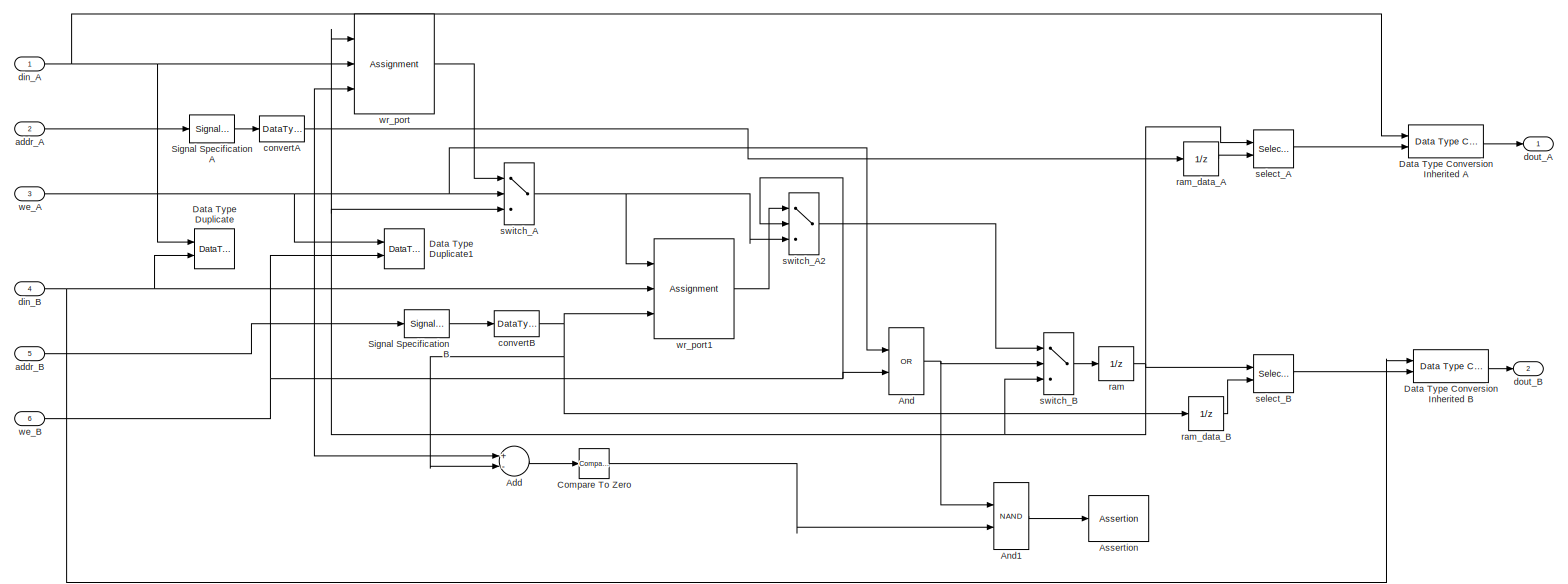
[diagram: dataplane/Avalon Data Processing/Left Channel Processing/Static_pFIR/B_k_Memory_Block2 - part 1/1, most of the canvas]
BLOCK [SubSystem] dataplane/Avalon Data Processing/Left Channel Processing/Static_pFIR/B_k_Memory_Block2
  AncestorBlock = DualPortRam_UNLOCKED/Dual Rate Dual Port RAM1
  Ports = [6, 2]
  RequestExecContextInheritance = off
BLOCK [Sum] dataplane/Avalon Data Processing/Left Channel Processing/Static_pFIR/B_k_Memory_Block2/Add
  Commented = on
  InputSameDT = off
  Inputs = +-
  OutDataTypeStr = Inherit: Inherit via internal rule
  Ports = [2, 1]
  SaturateOnIntegerOverflow = off
BLOCK [Logic] dataplane/Avalon Data Processing/Left Channel Processing/Static_pFIR/B_k_Memory_Block2/And
  AllPortsSameDT = off
  Operator = OR
  OutDataTypeStr = boolean
  Ports = [2, 1]
BLOCK [Logic] dataplane/Avalon Data Processing/Left Channel Processing/Static_pFIR/B_k_Memory_Block2/And1
  AllPortsSameDT = off
  Commented = on
  Operator = NAND
  OutDataTypeStr = boolean
  Ports = [2, 1]
BLOCK [Assertion] dataplane/Avalon Data Processing/Left Channel Processing/Static_pFIR/B_k_Memory_Block2/Assertion
  Commented = on
  StopWhenAssertionFail = off
BLOCK [Reference] dataplane/Avalon Data Processing/Left Channel Processing/Static_pFIR/B_k_Memory_Block2/Compare To Zero  REF=simulink/Logic and Bit
Operations/Compare
To Zero
  Commented = on
  Ports = [1, 1]
  SourceBlock = simulink/Logic and Bit\nOperations/Compare\nTo Zero
  SourceProductBaseCode = SL
  SourceProductName = Simulink
  SourceType = Compare To Zero
BLOCK [Reference] dataplane/Avalon Data Processing/Left Channel Processing/Static_pFIR/B_k_Memory_Block2/Data Type Conversion Inherited A  REF=simulink/Signal
Attributes/Data Type
Conversion
Inherited
  Ports = [2, 1]
  SourceBlock = simulink/Signal\nAttributes/Data Type\nConversion\nInherited
  SourceProductBaseCode = SL
  SourceProductName = Simulink
  SourceType = Conversion Inherited
BLOCK [Reference] dataplane/Avalon Data Processing/Left Channel Processing/Static_pFIR/B_k_Memory_Block2/Data Type Conversion Inherited B  REF=simulink/Signal
Attributes/Data Type
Conversion
Inherited
  Ports = [2, 1]
  SourceBlock = simulink/Signal\nAttributes/Data Type\nConversion\nInherited
  SourceProductBaseCode = SL
  SourceProductName = Simulink
  SourceType = Conversion Inherited
BLOCK [DataTypeDuplicate] dataplane/Avalon Data Processing/Left Channel Processing/Static_pFIR/B_k_Memory_Block2/Data Type Duplicate
  Ports = [2]
BLOCK [DataTypeDuplicate] dataplane/Avalon Data Processing/Left Channel Processing/Static_pFIR/B_k_Memory_Block2/Data Type Duplicate1
  Ports = [2]
BLOCK [SignalSpecification] dataplane/Avalon Data Processing/Left Channel Processing/Static_pFIR/B_k_Memory_Block2/Signal SpecificationA
  Dimensions = 1
  OutDataTypeStr = fixdt(0,ram_size,0)
BLOCK [SignalSpecification] dataplane/Avalon Data Processing/Left Channel Processing/Static_pFIR/B_k_Memory_Block2/Signal SpecificationB
  Dimensions = 1
  OutDataTypeStr = fixdt(0,ram_size,0)
BLOCK [Inport] dataplane/Avalon Data Processing/Left Channel Processing/Static_pFIR/B_k_Memory_Block2/addr_A
  IconDisplay = Port number
  Port = 2
BLOCK [Inport] dataplane/Avalon Data Processing/Left Channel Processing/Static_pFIR/B_k_Memory_Block2/addr_B
  IconDisplay = Port number
  Port = 5
BLOCK [DataTypeConversion] dataplane/Avalon Data Processing/Left Channel Processing/Static_pFIR/B_k_Memory_Block2/convertA
  OutDataTypeStr = uint16
  RndMeth = Floor
  SaturateOnIntegerOverflow = off
BLOCK [DataTypeConversion] dataplane/Avalon Data Processing/Left Channel Processing/Static_pFIR/B_k_Memory_Block2/convertB
  OutDataTypeStr = uint16
  RndMeth = Floor
  SaturateOnIntegerOverflow = off
BLOCK [Inport] dataplane/Avalon Data Processing/Left Channel Processing/Static_pFIR/B_k_Memory_Block2/din_A
  IconDisplay = Port number
BLOCK [Inport] dataplane/Avalon Data Processing/Left Channel Processing/Static_pFIR/B_k_Memory_Block2/din_B
  IconDisplay = Port number
  Port = 4
BLOCK [Outport] dataplane/Avalon Data Processing/Left Channel Processing/Static_pFIR/B_k_Memory_Block2/dout_A
  IconDisplay = Port number
  VectorParamsAs1DForOutWhenUnconnected = off
BLOCK [Outport] dataplane/Avalon Data Processing/Left Channel Processing/Static_pFIR/B_k_Memory_Block2/dout_B
  IconDisplay = Port number
  Port = 2
  VectorParamsAs1DForOutWhenUnconnected = off
BLOCK [UnitDelay] dataplane/Avalon Data Processing/Left Channel Processing/Static_pFIR/B_k_Memory_Block2/ram
  HasFrameUpgradeWarning = on
  InitialCondition = B_k_0_init
  SampleTime = -1
BLOCK [UnitDelay] dataplane/Avalon Data Processing/Left Channel Processing/Static_pFIR/B_k_Memory_Block2/ram_data_A
  HasFrameUpgradeWarning = on
  SampleTime = -1
BLOCK [UnitDelay] dataplane/Avalon Data Processing/Left Channel Processing/Static_pFIR/B_k_Memory_Block2/ram_data_B
  HasFrameUpgradeWarning = on
  SampleTime = -1
BLOCK [Selector] dataplane/Avalon Data Processing/Left Channel Processing/Static_pFIR/B_k_Memory_Block2/select_A
  IndexMode = Zero-based
  IndexOptions = Index vector (port)
  Indices = [1 3]
  InputPortWidth = 2^ram_size
  OutputSizes = 1
  Ports = [2, 1]
BLOCK [Selector] dataplane/Avalon Data Processing/Left Channel Processing/Static_pFIR/B_k_Memory_Block2/select_B
  IndexMode = Zero-based
  IndexOptions = Index vector (port)
  Indices = [1 3]
  InputPortWidth = 2^ram_size
  OutputSizes = 1
  Ports = [2, 1]
BLOCK [Switch] dataplane/Avalon Data Processing/Left Channel Processing/Static_pFIR/B_k_Memory_Block2/switch_A
  Criteria = u2 ~= 0
  InputSameDT = off
  SaturateOnIntegerOverflow = off
BLOCK [Switch] dataplane/Avalon Data Processing/Left Channel Processing/Static_pFIR/B_k_Memory_Block2/switch_A2
  Criteria = u2 ~= 0
  InputSameDT = off
  SaturateOnIntegerOverflow = off
BLOCK [Switch] dataplane/Avalon Data Processing/Left Channel Processing/Static_pFIR/B_k_Memory_Block2/switch_B
  Criteria = u2 ~= 0
  InputSameDT = off
  SaturateOnIntegerOverflow = off
BLOCK [Inport] dataplane/Avalon Data Processing/Left Channel Processing/Static_pFIR/B_k_Memory_Block2/we_A
  IconDisplay = Port number
  OutDataTypeStr = boolean
  Port = 3
BLOCK [Inport] dataplane/Avalon Data Processing/Left Channel Processing/Static_pFIR/B_k_Memory_Block2/we_B
  IconDisplay = Port number
  OutDataTypeStr = boolean
  Port = 6
BLOCK [Assignment] dataplane/Avalon Data Processing/Left Channel Processing/Static_pFIR/B_k_Memory_Block2/wr_port
  IndexMode = Zero-based
  IndexOptions = Index vector (port)
  Indices = 1
  OutputSizes = [1 1]
  Ports = [3, 1]
BLOCK [Assignment] dataplane/Avalon Data Processing/Left Channel Processing/Static_pFIR/B_k_Memory_Block2/wr_port1
  IndexMode = Zero-based
  IndexOptions = Index vector (port)
  Indices = 1
  OutputSizes = [1 1]
  Ports = [3, 1]
BLOCK [Outport] dataplane/Avalon Data Processing/Left Channel Processing/Static_pFIR/Data_out
  IconDisplay = Port number
  VectorParamsAs1DForOutWhenUnconnected = off
BLOCK [Reference] dataplane/Avalon Data Processing/Left Channel Processing/Static_pFIR/Input_Data_Circular_Buffer  REF=hdlsllib/HDL RAMs/Simple Dual Port RAM
  Ports = [4, 1]
  SourceBlock = hdlsllib/HDL RAMs/Simple Dual Port RAM
  SourceProductBaseCode = SL
  SourceProductName = Simulink
  SourceType = Simple Dual-port RAM
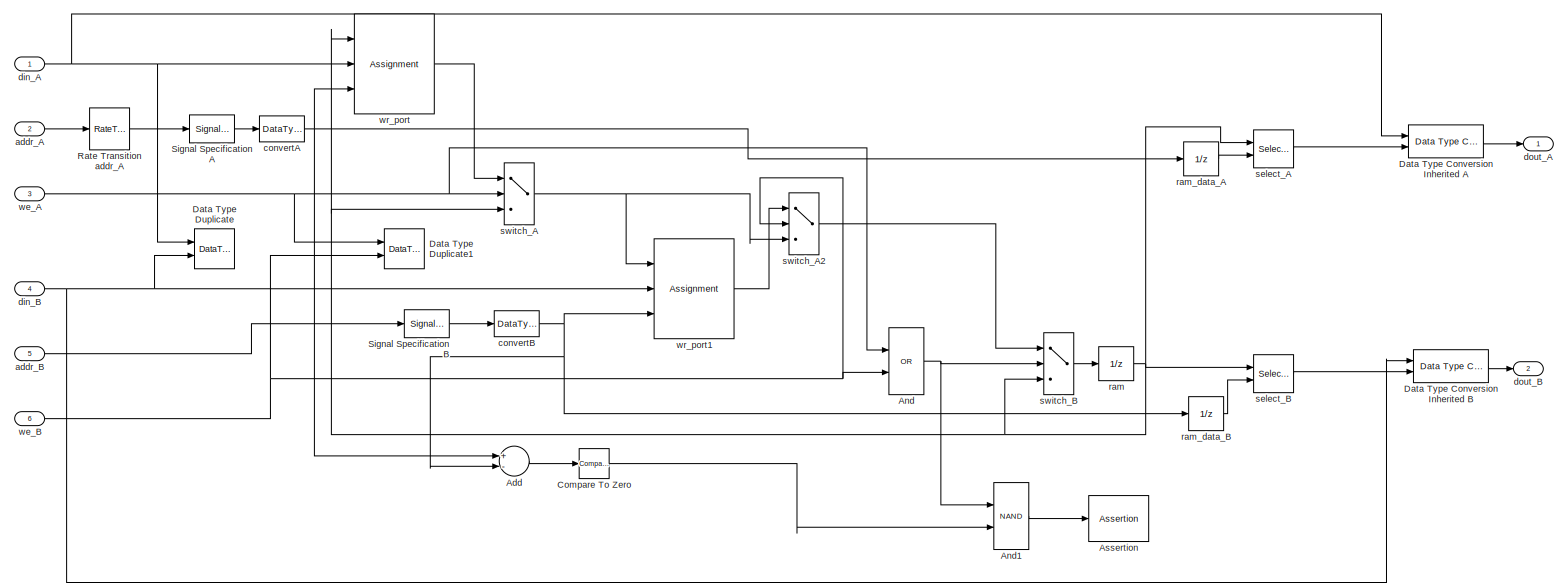
[diagram: dataplane/Avalon Data Processing/Left Channel Processing/Static_pFIR/Input_Data_Circular_Buffer_old - part 1/1, most of the canvas]
BLOCK [SubSystem] dataplane/Avalon Data Processing/Left Channel Processing/Static_pFIR/Input_Data_Circular_Buffer_old
  AncestorBlock = DualPortRam_UNLOCKED/Dual Rate Dual Port RAM1
  Commented = on
  Ports = [6, 2]
  RequestExecContextInheritance = off
BLOCK [Sum] dataplane/Avalon Data Processing/Left Channel Processing/Static_pFIR/Input_Data_Circular_Buffer_old/Add
  Commented = on
  InputSameDT = off
  Inputs = +-
  OutDataTypeStr = Inherit: Inherit via internal rule
  Ports = [2, 1]
  SaturateOnIntegerOverflow = off
BLOCK [Logic] dataplane/Avalon Data Processing/Left Channel Processing/Static_pFIR/Input_Data_Circular_Buffer_old/And
  AllPortsSameDT = off
  Operator = OR
  OutDataTypeStr = boolean
  Ports = [2, 1]
BLOCK [Logic] dataplane/Avalon Data Processing/Left Channel Processing/Static_pFIR/Input_Data_Circular_Buffer_old/And1
  AllPortsSameDT = off
  Commented = on
  Operator = NAND
  OutDataTypeStr = boolean
  Ports = [2, 1]
BLOCK [Assertion] dataplane/Avalon Data Processing/Left Channel Processing/Static_pFIR/Input_Data_Circular_Buffer_old/Assertion
  Commented = on
  StopWhenAssertionFail = off
BLOCK [Reference] dataplane/Avalon Data Processing/Left Channel Processing/Static_pFIR/Input_Data_Circular_Buffer_old/Compare To Zero  REF=simulink/Logic and Bit
Operations/Compare
To Zero
  Commented = on
  Ports = [1, 1]
  SourceBlock = simulink/Logic and Bit\nOperations/Compare\nTo Zero
  SourceProductBaseCode = SL
  SourceProductName = Simulink
  SourceType = Compare To Zero
BLOCK [Reference] dataplane/Avalon Data Processing/Left Channel Processing/Static_pFIR/Input_Data_Circular_Buffer_old/Data Type Conversion Inherited A  REF=simulink/Signal
Attributes/Data Type
Conversion
Inherited
  Ports = [2, 1]
  SourceBlock = simulink/Signal\nAttributes/Data Type\nConversion\nInherited
  SourceProductBaseCode = SL
  SourceProductName = Simulink
  SourceType = Conversion Inherited
BLOCK [Reference] dataplane/Avalon Data Processing/Left Channel Processing/Static_pFIR/Input_Data_Circular_Buffer_old/Data Type Conversion Inherited B  REF=simulink/Signal
Attributes/Data Type
Conversion
Inherited
  Ports = [2, 1]
  SourceBlock = simulink/Signal\nAttributes/Data Type\nConversion\nInherited
  SourceProductBaseCode = SL
  SourceProductName = Simulink
  SourceType = Conversion Inherited
BLOCK [DataTypeDuplicate] dataplane/Avalon Data Processing/Left Channel Processing/Static_pFIR/Input_Data_Circular_Buffer_old/Data Type Duplicate
  Ports = [2]
BLOCK [DataTypeDuplicate] dataplane/Avalon Data Processing/Left Channel Processing/Static_pFIR/Input_Data_Circular_Buffer_old/Data Type Duplicate1
  Ports = [2]
BLOCK [RateTransition] dataplane/Avalon Data Processing/Left Channel Processing/Static_pFIR/Input_Data_Circular_Buffer_old/Rate Transition addr_A
BLOCK [SignalSpecification] dataplane/Avalon Data Processing/Left Channel Processing/Static_pFIR/Input_Data_Circular_Buffer_old/Signal SpecificationA
  Dimensions = 1
  OutDataTypeStr = fixdt(0,ram_size,0)
BLOCK [SignalSpecification] dataplane/Avalon Data Processing/Left Channel Processing/Static_pFIR/Input_Data_Circular_Buffer_old/Signal SpecificationB
  Dimensions = 1
  OutDataTypeStr = fixdt(0,ram_size,0)
BLOCK [Inport] dataplane/Avalon Data Processing/Left Channel Processing/Static_pFIR/Input_Data_Circular_Buffer_old/addr_A
  IconDisplay = Port number
  Port = 2
BLOCK [Inport] dataplane/Avalon Data Processing/Left Channel Processing/Static_pFIR/Input_Data_Circular_Buffer_old/addr_B
  IconDisplay = Port number
  Port = 5
BLOCK [DataTypeConversion] dataplane/Avalon Data Processing/Left Channel Processing/Static_pFIR/Input_Data_Circular_Buffer_old/convertA
  OutDataTypeStr = uint16
  RndMeth = Floor
  SaturateOnIntegerOverflow = off
BLOCK [DataTypeConversion] dataplane/Avalon Data Processing/Left Channel Processing/Static_pFIR/Input_Data_Circular_Buffer_old/convertB
  OutDataTypeStr = uint16
  RndMeth = Floor
  SaturateOnIntegerOverflow = off
BLOCK [Inport] dataplane/Avalon Data Processing/Left Channel Processing/Static_pFIR/Input_Data_Circular_Buffer_old/din_A
  IconDisplay = Port number
BLOCK [Inport] dataplane/Avalon Data Processing/Left Channel Processing/Static_pFIR/Input_Data_Circular_Buffer_old/din_B
  IconDisplay = Port number
  Port = 4
BLOCK [Outport] dataplane/Avalon Data Processing/Left Channel Processing/Static_pFIR/Input_Data_Circular_Buffer_old/dout_A
  IconDisplay = Port number
  VectorParamsAs1DForOutWhenUnconnected = off
BLOCK [Outport] dataplane/Avalon Data Processing/Left Channel Processing/Static_pFIR/Input_Data_Circular_Buffer_old/dout_B
  IconDisplay = Port number
  Port = 2
  VectorParamsAs1DForOutWhenUnconnected = off
BLOCK [UnitDelay] dataplane/Avalon Data Processing/Left Channel Processing/Static_pFIR/Input_Data_Circular_Buffer_old/ram
  HasFrameUpgradeWarning = on
  SampleTime = -1
BLOCK [UnitDelay] dataplane/Avalon Data Processing/Left Channel Processing/Static_pFIR/Input_Data_Circular_Buffer_old/ram_data_A
  HasFrameUpgradeWarning = on
  SampleTime = -1
BLOCK [UnitDelay] dataplane/Avalon Data Processing/Left Channel Processing/Static_pFIR/Input_Data_Circular_Buffer_old/ram_data_B
  HasFrameUpgradeWarning = on
  SampleTime = -1
BLOCK [Selector] dataplane/Avalon Data Processing/Left Channel Processing/Static_pFIR/Input_Data_Circular_Buffer_old/select_A
  IndexMode = Zero-based
  IndexOptions = Index vector (port)
  Indices = [1 3]
  InputPortWidth = 2^ram_size
  OutputSizes = 1
  Ports = [2, 1]
BLOCK [Selector] dataplane/Avalon Data Processing/Left Channel Processing/Static_pFIR/Input_Data_Circular_Buffer_old/select_B
  IndexMode = Zero-based
  IndexOptions = Index vector (port)
  Indices = [1 3]
  InputPortWidth = 2^ram_size
  OutputSizes = 1
  Ports = [2, 1]
BLOCK [Switch] dataplane/Avalon Data Processing/Left Channel Processing/Static_pFIR/Input_Data_Circular_Buffer_old/switch_A
  Criteria = u2 ~= 0
  InputSameDT = off
  SaturateOnIntegerOverflow = off
BLOCK [Switch] dataplane/Avalon Data Processing/Left Channel Processing/Static_pFIR/Input_Data_Circular_Buffer_old/switch_A2
  Criteria = u2 ~= 0
  InputSameDT = off
  SaturateOnIntegerOverflow = off
BLOCK [Switch] dataplane/Avalon Data Processing/Left Channel Processing/Static_pFIR/Input_Data_Circular_Buffer_old/switch_B
  Criteria = u2 ~= 0
  InputSameDT = off
  SaturateOnIntegerOverflow = off
BLOCK [Inport] dataplane/Avalon Data Processing/Left Channel Processing/Static_pFIR/Input_Data_Circular_Buffer_old/we_A
  IconDisplay = Port number
  OutDataTypeStr = boolean
  Port = 3
BLOCK [Inport] dataplane/Avalon Data Processing/Left Channel Processing/Static_pFIR/Input_Data_Circular_Buffer_old/we_B
  IconDisplay = Port number
  OutDataTypeStr = boolean
  Port = 6
BLOCK [Assignment] dataplane/Avalon Data Processing/Left Channel Processing/Static_pFIR/Input_Data_Circular_Buffer_old/wr_port
  IndexMode = Zero-based
  IndexOptions = Index vector (port)
  Indices = 1
  OutputSizes = [1 1]
  Ports = [3, 1]
BLOCK [Assignment] dataplane/Avalon Data Processing/Left Channel Processing/Static_pFIR/Input_Data_Circular_Buffer_old/wr_port1
  IndexMode = Zero-based
  IndexOptions = Index vector (port)
  Indices = 1
  OutputSizes = [1 1]
  Ports = [3, 1]
BLOCK [Inport] dataplane/Avalon Data Processing/Left Channel Processing/Static_pFIR/Left_Data_In
  IconDisplay = Port number
BLOCK [SubSystem] dataplane/Avalon Data Processing/Left Channel Processing/Static_pFIR/Multiply_And_Sum
  Ports = [3, 2]
  RequestExecContextInheritance = off
BLOCK [Reference] dataplane/Avalon Data Processing/Left Channel Processing/Static_pFIR/Multiply_And_Sum/Bitwise Operator  REF=simulink/Logic and Bit
Operations/Bitwise
Operator
  Ports = [1, 1]
  SourceBlock = simulink/Logic and Bit\nOperations/Bitwise\nOperator
  SourceProductBaseCode = SL
  SourceProductName = Simulink
  SourceType = Bitwise Operator
BLOCK [Constant] dataplane/Avalon Data Processing/Left Channel Processing/Static_pFIR/Multiply_And_Sum/Constant
  OutDataTypeStr = fixdt(1, W_bits, F_bits)
  SampleTime = Ts/FIR_0_Uprate
  Value = 0
BLOCK [Inport] dataplane/Avalon Data Processing/Left Channel Processing/Static_pFIR/Multiply_And_Sum/End_of_sample_calc
  IconDisplay = Port number
  Port = 2
BLOCK [Outport] dataplane/Avalon Data Processing/Left Channel Processing/Static_pFIR/Multiply_And_Sum/Filtered_Output
  IconDisplay = Port number
  VectorParamsAs1DForOutWhenUnconnected = off
BLOCK [Reference] dataplane/Avalon Data Processing/Left Channel Processing/Static_pFIR/Multiply_And_Sum/Multiply-Add  REF=hdlsllib/HDL Operations/Multiply-Add
  Ports = [3, 1]
  SourceBlock = hdlsllib/HDL Operations/Multiply-Add
  SourceProductBaseCode = SL
  SourceProductName = Simulink
  SourceType = Multiply-Add
BLOCK [Outport] dataplane/Avalon Data Processing/Left Channel Processing/Static_pFIR/Multiply_And_Sum/Output_Valid
  IconDisplay = Port number
  Port = 2
  VectorParamsAs1DForOutWhenUnconnected = off
BLOCK [Switch] dataplane/Avalon Data Processing/Left Channel Processing/Static_pFIR/Multiply_And_Sum/Reset_Switch
  Criteria = u2 ~= 0
  InputSameDT = off
  SaturateOnIntegerOverflow = off
  ZeroCross = off
BLOCK [UnitDelay] dataplane/Avalon Data Processing/Left Channel Processing/Static_pFIR/Multiply_And_Sum/Sum_memory
  HasFrameUpgradeWarning = on
  SampleTime = -1
BLOCK [Inport] dataplane/Avalon Data Processing/Left Channel Processing/Static_pFIR/Multiply_And_Sum/b_i
  IconDisplay = Port number
  Port = 3
BLOCK [Inport] dataplane/Avalon Data Processing/Left Channel Processing/Static_pFIR/Multiply_And_Sum/x[n-i]
  IconDisplay = Port number
BLOCK [Constant] dataplane/Avalon Data Processing/Left Channel Processing/Static_pFIR/Never_write_B2
  OutDataTypeStr = fixdt(1,W_bits, F_bits)
  SampleTime = Ts/FIR_0_Uprate
  Value = 0
BLOCK [UnitDelay] dataplane/Avalon Data Processing/Left Channel Processing/Static_pFIR/Output_memory
  HasFrameUpgradeWarning = on
  SampleTime = -1
BLOCK [Constant] dataplane/Avalon Data Processing/Left Channel Processing/Static_pFIR/READ_ONLY_1
  OutDataTypeStr = fixdt(1,W_bits, F_bits)
  SampleTime = Ts/FIR_0_Uprate
  Value = 0
BLOCK [Constant] dataplane/Avalon Data Processing/Left Channel Processing/Static_pFIR/READ_ONLY_2
  OutDataTypeStr = fixdt(0,FIR_0_Size, 0)
  SampleTime = Ts/FIR_0_Uprate
  Value = 0
BLOCK [Constant] dataplane/Avalon Data Processing/Left Channel Processing/Static_pFIR/READ_ONLY_3
  OutDataTypeStr = boolean
  SampleTime = Ts/FIR_0_Uprate
  Value = 0
BLOCK [RateTransition] dataplane/Avalon Data Processing/Left Channel Processing/Static_pFIR/Rate Transition
  Commented = on
  OutPortSampleTime = Ts
BLOCK [Switch] dataplane/Avalon Data Processing/Left Channel Processing/Static_pFIR/Reset_Switch
  Criteria = u2 ~= 0
  InputSameDT = off
  SaturateOnIntegerOverflow = off
BLOCK [Terminator] dataplane/Avalon Data Processing/Left Channel Processing/Static_pFIR/Terminator7
BLOCK [Inport] dataplane/Avalon Data Processing/Left Channel Processing/Static_pFIR/Valid_in
  IconDisplay = Port number
  Port = 2
BLOCK [Terminator] dataplane/Avalon Data Processing/Left Channel Processing/Terminator
  Commented = on
BLOCK [Terminator] dataplane/Avalon Data Processing/Left Channel Processing/Terminator1
  Commented = on
BLOCK [Terminator] dataplane/Avalon Data Processing/Left Channel Processing/Terminator2
  Commented = on
BLOCK [Terminator] dataplane/Avalon Data Processing/Left Channel Processing/Terminator3
  Commented = on
BLOCK [Terminator] dataplane/Avalon Data Processing/Left Channel Processing/Terminator4
BLOCK [Terminator] dataplane/Avalon Data Processing/Left Channel Processing/Terminator5
BLOCK [Inport] dataplane/Avalon Data Processing/Left Channel Processing/Valid_in
  IconDisplay = Port number
  Port = 4
BLOCK [Logic] dataplane/Avalon Data Processing/Logical Operator
  AllPortsSameDT = off
  OutDataTypeStr = boolean
  Ports = [2, 1]
BLOCK [MultiPortSwitch] dataplane/Avalon Data Processing/Multiport Switch
  DataPortOrder = Zero-based contiguous
  DiagnosticForDefault = None
  InputSameDT = off
  Ports = [4, 1]
  SaturateOnIntegerOverflow = off
  zeroidx = on
BLOCK [Inport] dataplane/Avalon Data Processing/Register_Addr
  IconDisplay = Port number
  Port = 5
BLOCK [Inport] dataplane/Avalon Data Processing/Register_Data
  IconDisplay = Port number
  Port = 4
BLOCK [SubSystem] dataplane/Avalon Data Processing/Right Channel Processing
  Ports = [2, 1, 1]
  RequestExecContextInheritance = off
  TreatAsAtomicUnit = on
BLOCK [DataTypeConversion] dataplane/Avalon Data Processing/Right Channel Processing/Data Type Conversion
  OutDataTypeStr = fixdt(1,mp.W_bits,mp.F_bits)
  RndMeth = Floor
  SaturateOnIntegerOverflow = off
BLOCK [EnablePort] dataplane/Avalon Data Processing/Right Channel Processing/Enable
  Ports = []
BLOCK [Product] dataplane/Avalon Data Processing/Right Channel Processing/Product
  InputSameDT = off
  OutDataTypeStr = Inherit: Inherit via internal rule
  Ports = [2, 1]
  RndMeth = Floor
  SaturateOnIntegerOverflow = off
BLOCK [Inport] dataplane/Avalon Data Processing/Right Channel Processing/Right_Data_In
  IconDisplay = Port number
BLOCK [Outport] dataplane/Avalon Data Processing/Right Channel Processing/Right_Data_Out 
  IconDisplay = Port number
  InitialOutput = 0
  VectorParamsAs1DForOutWhenUnconnected = off
BLOCK [Inport] dataplane/Avalon Data Processing/Right Channel Processing/Right_Gain
  IconDisplay = Port number
  Port = 2
BLOCK [Inport] dataplane/Avalon Data Processing/Sink_Channel
  IconDisplay = Port number
  Port = 3
BLOCK [Inport] dataplane/Avalon Data Processing/Sink_Data
  IconDisplay = Port number
  Port = 2
BLOCK [Inport] dataplane/Avalon Data Processing/Sink_Valid
  IconDisplay = Port number
BLOCK [Outport] dataplane/Avalon Data Processing/Source_Channel
  IconDisplay = Port number
  InitialOutput = 0
  Port = 2
  VectorParamsAs1DForOutWhenUnconnected = off
BLOCK [Outport] dataplane/Avalon Data Processing/Source_Data
  IconDisplay = Port number
  InitialOutput = 0
  VectorParamsAs1DForOutWhenUnconnected = off
BLOCK [Inport] dataplane/avalon_sink_channel
  IconDisplay = Port number
  Port = 3
BLOCK [Inport] dataplane/avalon_sink_data
  IconDisplay = Port number
  Port = 2
BLOCK [Inport] dataplane/avalon_sink_error
  IconDisplay = Port number
  Port = 4
BLOCK [Inport] dataplane/avalon_sink_valid
  IconDisplay = Port number
BLOCK [Outport] dataplane/avalon_source_channel
  IconDisplay = Port number
  Port = 3
  VectorParamsAs1DForOutWhenUnconnected = off
BLOCK [Outport] dataplane/avalon_source_data
  IconDisplay = Port number
  Port = 2
  VectorParamsAs1DForOutWhenUnconnected = off
BLOCK [Outport] dataplane/avalon_source_error
  IconDisplay = Port number
  Port = 4
  VectorParamsAs1DForOutWhenUnconnected = off
BLOCK [Outport] dataplane/avalon_source_valid
  IconDisplay = Port number
  VectorParamsAs1DForOutWhenUnconnected = off
BLOCK [Inport] dataplane/register_control_addr
  IconDisplay = Port number
  Port = 6
BLOCK [Inport] dataplane/register_control_data
  IconDisplay = Port number
  Port = 5
ANNOTATION (root): Steps for converting DataPlane block to VHDL
ANNOTATION (root): Run simulation first before clicking this box to Generate VHDL
ANNOTATION (root): This example shows how to connect the ADC (output) of the audio codec to the DAC (input) of the audio codec (AD1939). Audio data is just passed through with a single gain applied to the left and right channels. Data is streamed in the data plane using the Avalon Streaming interface that uses the data-channel-valid protocol.
ANNOTATION (root): Author: Ross K. Snider Company: Flat Earth Inc 985 Technology Blvd Bozeman, MT 59718 <email> Create Date: June 7, 2019 Tool Version: MATLAB R2019a Revision: 1.0 License: MIT License (see license in DocBlock)
ANNOTATION (root): The block Register Control Signals contains the control signals for the DataPlane block. These are the registers that Linux will control. The naming convention for the control signals are: Register_Control_
ANNOTATION (root): The block SG_DataPlane is the block that gets converted to VHDL. The naming convention is _DataPlane
ANNOTATION Capture Avalon Signals: Note: If these "To Workspace" variables show up under a variable called "out", Open the Configure Logging... window (Simulation->Output->Configure Logging...) and deselect the checkbox "Single simulation output:" found under the "Save to workspace or file" section.
ANNOTATION Generate Avalon Signals: Avalon Streaming Sink Signals Note: We are assuming a specific system clock frequency that these signals are being clock in at. The interface needs to be regenerated if this system clock frequency changes. Change system clock frequency in InitFcn callback in Model Explorer. -- Avalon streaming slave interface (sink) AD1939_DAC_data : in std_logic_vector(31 downto 0); -- W=32; F=28; Signed 2's Comp...<+544ch>
ANNOTATION Register Control Signals: Control Signals that will be coming from Linux via memory mapped registers need to have names containing the prefix "register_control_" (all lower case)
ANNOTATION dataplane: Avalon streaming interface signals need to have the names containing the prefix "avalon_" (all lower case)
ANNOTATION dataplane: Control Signals that will be coming from Linux via memory mapped registers need to have names containing the prefix "register_control_" (all lower case)
ANNOTATION dataplane: Ignore Errors. Assuming no errors coming from the ADC and errors going to DAC will be ignored. Any Error streaming needs to be done inside Avalon Data Processing block.
ANNOTATION dataplane: The Avalon Data Processing Block performs DSP on the left and right channels.
ANNOTATION dataplane: The Avalon Data Processing block only executes when valid is asserted
ANNOTATION dataplane/Avalon Data Processing: Check if Channel 0 (Left Channel)
ANNOTATION dataplane/Avalon Data Processing: Check if Channel 1 (Right Channel)
ANNOTATION dataplane/Avalon Data Processing: An enabled subsystem This subsystem only runs when the data valid signal is enabled (asserted)
ANNOTATION dataplane/Avalon Data Processing: Select output data based on channel number
ANNOTATION dataplane/Avalon Data Processing: The Left Channel Processing block only executes when channel 0 is detected
ANNOTATION dataplane/Avalon Data Processing: The Right Channel Processing block only executes when channel 1 is detected
ANNOTATION dataplane/Avalon Data Processing/Left Channel Processing: An enabled subsystem This subsystem only runs when the data valid signal is enabled (asserted)
ANNOTATION dataplane/Avalon Data Processing/Left Channel Processing: Put in a check here if we make L/R channels have different tables
ANNOTATION dataplane/Avalon Data Processing/Left Channel Processing/Static_pFIR: B_ks will be programmable eventually. For the Conference, they will be preset.
ANNOTATION dataplane/Avalon Data Processing/Left Channel Processing/Static_pFIR: consider desired output rate
ANNOTATION dataplane/Avalon Data Processing/Left Channel Processing/Static_pFIR/Addr_Gen : Realign Delay here?
ANNOTATION dataplane/Avalon Data Processing/Left Channel Processing/Static_pFIR/Multiply_And_Sum: End_of_sample_calc triggers this subsystem to give the FIR output for this sample. Also, it resets the sum memory back to 0.
ANNOTATION dataplane/Avalon Data Processing/Left Channel Processing/Static_pFIR/Multiply_And_Sum: Try to use this at some point?
ANNOTATION dataplane/Avalon Data Processing/Right Channel Processing: Apply Right Gain
ANNOTATION dataplane/Avalon Data Processing/Right Channel Processing: An enabled subsystem This subsystem only runs when the data valid signal is enabled (asserted)
LINE Capture Avalon Signals/channel:1 -> Capture Avalon Signals/To Workspace2:1
LINE Capture Avalon Signals/data:1 -> Capture Avalon Signals/To Workspace:1
LINE Capture Avalon Signals/error:1 -> Capture Avalon Signals/To Workspace3:1
LINE Capture Avalon Signals/valid:1 -> Capture Avalon Signals/To Workspace1:1
LINE Generate Avalon Signals/Avalon Source Channel:1 -> Generate Avalon Signals/Data Type Conversion1:1
LINE Generate Avalon Signals/Avalon Source Data :1 -> Generate Avalon Signals/Data Type Conversion:1
LINE Generate Avalon Signals/Avalon Source Error:1 -> Generate Avalon Signals/Data Type Conversion3:1
LINE Generate Avalon Signals/Avalon Source Valid:1 -> Generate Avalon Signals/Data Type Conversion2:1
LINE Generate Avalon Signals/Data Type Conversion1:1 -> Generate Avalon Signals/channel:1
LINE Generate Avalon Signals/Data Type Conversion2:1 -> Generate Avalon Signals/valid:1
LINE Generate Avalon Signals/Data Type Conversion3:1 -> Generate Avalon Signals/error:1
LINE Generate Avalon Signals/Data Type Conversion:1 -> Generate Avalon Signals/data:1
LINE Generate Avalon Signals:1 -> dataplane:1
LINE Generate Avalon Signals:2 -> dataplane:2
LINE Generate Avalon Signals:3 -> dataplane:3
LINE Generate Avalon Signals:4 -> dataplane:4
LINE Register Control Signals/Data Type Conversion1:1 -> Register Control Signals/register_control_addr:1
LINE Register Control Signals/Data Type Conversion2:1 -> Register Control Signals/register_control_data:1
LINE Register Control Signals/Time Series Signal from Workspace 1:1 -> Register Control Signals/Data Type Conversion2:1
LINE Register Control Signals/Time Series Signal from Workspace 2:1 -> Register Control Signals/Data Type Conversion1:1
LINE Register Control Signals:1 -> dataplane:5
LINE Register Control Signals:2 -> dataplane:6
LINE dataplane/Avalon Data Processing/Compare To Constant1:1 -> dataplane/Avalon Data Processing/Right Channel Processing:enable
LINE dataplane/Avalon Data Processing/Compare To Constant2:1 -> dataplane/Avalon Data Processing/Logical Operator:2
LINE dataplane/Avalon Data Processing/Left Channel Processing/Cast To Boolean1:1 -> dataplane/Avalon Data Processing/Left Channel Processing/Terminator3:1
LINE dataplane/Avalon Data Processing/Left Channel Processing/Cast To Boolean:1 -> dataplane/Avalon Data Processing/Left Channel Processing/Terminator2:1
LINE dataplane/Avalon Data Processing/Left Channel Processing/Cast To fp(1,32,28)1:1 -> dataplane/Avalon Data Processing/Left Channel Processing/Terminator:1
LINE dataplane/Avalon Data Processing/Left Channel Processing/Cast To fp(1,32,28):1 -> dataplane/Avalon Data Processing/Left Channel Processing/Terminator1:1
LINE dataplane/Avalon Data Processing/Left Channel Processing/From Workspace1:1 -> dataplane/Avalon Data Processing/Left Channel Processing/Cast To fp(1,32,28):1
LINE dataplane/Avalon Data Processing/Left Channel Processing/From Workspace2:1 -> dataplane/Avalon Data Processing/Left Channel Processing/Cast To Boolean:1
LINE dataplane/Avalon Data Processing/Left Channel Processing/From Workspace4:1 -> dataplane/Avalon Data Processing/Left Channel Processing/Cast To Boolean1:1
LINE dataplane/Avalon Data Processing/Left Channel Processing/From Workspace:1 -> dataplane/Avalon Data Processing/Left Channel Processing/Cast To fp(1,32,28)1:1
LINE dataplane/Avalon Data Processing/Left Channel Processing/Left_Data_In:1 -> dataplane/Avalon Data Processing/Left Channel Processing/Static_pFIR:1
LINE dataplane/Avalon Data Processing/Left Channel Processing/Register_Addr:1 -> dataplane/Avalon Data Processing/Left Channel Processing/Terminator4:1
LINE dataplane/Avalon Data Processing/Left Channel Processing/Register_Data:1 -> dataplane/Avalon Data Processing/Left Channel Processing/Terminator5:1
LINE dataplane/Avalon Data Processing/Left Channel Processing/Static_pFIR/Addr_Gen /Add:1 -> dataplane/Avalon Data Processing/Left Channel Processing/Static_pFIR/Addr_Gen /Input_Addr:1
LINE dataplane/Avalon Data Processing/Left Channel Processing/Static_pFIR/Addr_Gen /Compare To Zero:1 -> dataplane/Avalon Data Processing/Left Channel Processing/Static_pFIR/Addr_Gen /End_of_sample_calc:1
LINE dataplane/Avalon Data Processing/Left Channel Processing/Static_pFIR/Addr_Gen /Constant:1 -> dataplane/Avalon Data Processing/Left Channel Processing/Static_pFIR/Addr_Gen /Add:2
NET dataplane/Avalon Data Processing/Left Channel Processing/Static_pFIR/Addr_Gen /Counter 0 to |b_k|-1:1 -> dataplane/Avalon Data Processing/Left Channel Processing/Static_pFIR/Addr_Gen /Compare To Zero:1, dataplane/Avalon Data Processing/Left Channel Processing/Static_pFIR/Addr_Gen /Subtract:2, dataplane/Avalon Data Processing/Left Channel Processing/Static_pFIR/Addr_Gen /b_k_addr:1
LINE dataplane/Avalon Data Processing/Left Channel Processing/Static_pFIR/Addr_Gen /Input_Addr_Counter:1 -> dataplane/Avalon Data Processing/Left Channel Processing/Static_pFIR/Addr_Gen /Rate Transition:1
NET dataplane/Avalon Data Processing/Left Channel Processing/Static_pFIR/Addr_Gen /Rate Transition:1 -> dataplane/Avalon Data Processing/Left Channel Processing/Static_pFIR/Addr_Gen /Add:1, dataplane/Avalon Data Processing/Left Channel Processing/Static_pFIR/Addr_Gen /Subtract:1
LINE dataplane/Avalon Data Processing/Left Channel Processing/Static_pFIR/Addr_Gen /Realignment_delay:1 -> dataplane/Avalon Data Processing/Left Channel Processing/Static_pFIR/Addr_Gen /Subtract:3
LINE dataplane/Avalon Data Processing/Left Channel Processing/Static_pFIR/Addr_Gen /Subtract:1 -> dataplane/Avalon Data Processing/Left Channel Processing/Static_pFIR/Addr_Gen /Data_History_Rd_addr:1
LINE dataplane/Avalon Data Processing/Left Channel Processing/Static_pFIR/Addr_Gen :1 -> dataplane/Avalon Data Processing/Left Channel Processing/Static_pFIR/Input_Data_Circular_Buffer:2
LINE dataplane/Avalon Data Processing/Left Channel Processing/Static_pFIR/Addr_Gen :2 -> dataplane/Avalon Data Processing/Left Channel Processing/Static_pFIR/Input_Data_Circular_Buffer:4
LINE dataplane/Avalon Data Processing/Left Channel Processing/Static_pFIR/Addr_Gen :3 -> dataplane/Avalon Data Processing/Left Channel Processing/Static_pFIR/Alignment_Delay:1
LINE dataplane/Avalon Data Processing/Left Channel Processing/Static_pFIR/Addr_Gen :4 -> dataplane/Avalon Data Processing/Left Channel Processing/Static_pFIR/B_k_Memory_Block2:5
LINE dataplane/Avalon Data Processing/Left Channel Processing/Static_pFIR/Alignment_Delay:1 -> dataplane/Avalon Data Processing/Left Channel Processing/Static_pFIR/Multiply_And_Sum:2
LINE dataplane/Avalon Data Processing/Left Channel Processing/Static_pFIR/Always_read_B2:1 -> dataplane/Avalon Data Processing/Left Channel Processing/Static_pFIR/B_k_Memory_Block2:6
LINE dataplane/Avalon Data Processing/Left Channel Processing/Static_pFIR/B_k_Memory_Block2:1 -> dataplane/Avalon Data Processing/Left Channel Processing/Static_pFIR/Terminator7:1
LINE dataplane/Avalon Data Processing/Left Channel Processing/Static_pFIR/B_k_Memory_Block2:2 -> dataplane/Avalon Data Processing/Left Channel Processing/Static_pFIR/Multiply_And_Sum:3
LINE dataplane/Avalon Data Processing/Left Channel Processing/Static_pFIR/Input_Data_Circular_Buffer:1 -> dataplane/Avalon Data Processing/Left Channel Processing/Static_pFIR/Multiply_And_Sum:1
LINE dataplane/Avalon Data Processing/Left Channel Processing/Static_pFIR/Left_Data_In:1 -> dataplane/Avalon Data Processing/Left Channel Processing/Static_pFIR/Input_Data_Circular_Buffer:1
LINE dataplane/Avalon Data Processing/Left Channel Processing/Static_pFIR/Multiply_And_Sum/Bitwise Operator:1 -> dataplane/Avalon Data Processing/Left Channel Processing/Static_pFIR/Multiply_And_Sum/Reset_Switch:2
LINE dataplane/Avalon Data Processing/Left Channel Processing/Static_pFIR/Multiply_And_Sum/Constant:1 -> dataplane/Avalon Data Processing/Left Channel Processing/Static_pFIR/Multiply_And_Sum/Reset_Switch:3
NET dataplane/Avalon Data Processing/Left Channel Processing/Static_pFIR/Multiply_And_Sum/End_of_sample_calc:1 -> dataplane/Avalon Data Processing/Left Channel Processing/Static_pFIR/Multiply_And_Sum/Bitwise Operator:1, dataplane/Avalon Data Processing/Left Channel Processing/Static_pFIR/Multiply_And_Sum/Output_Valid:1
LINE dataplane/Avalon Data Processing/Left Channel Processing/Static_pFIR/Multiply_And_Sum/Multiply-Add:1 -> dataplane/Avalon Data Processing/Left Channel Processing/Static_pFIR/Multiply_And_Sum/Reset_Switch:1
LINE dataplane/Avalon Data Processing/Left Channel Processing/Static_pFIR/Multiply_And_Sum/Reset_Switch:1 -> dataplane/Avalon Data Processing/Left Channel Processing/Static_pFIR/Multiply_And_Sum/Sum_memory:1
NET dataplane/Avalon Data Processing/Left Channel Processing/Static_pFIR/Multiply_And_Sum/Sum_memory:1 -> dataplane/Avalon Data Processing/Left Channel Processing/Static_pFIR/Multiply_And_Sum/Filtered_Output:1, dataplane/Avalon Data Processing/Left Channel Processing/Static_pFIR/Multiply_And_Sum/Multiply-Add:3
LINE dataplane/Avalon Data Processing/Left Channel Processing/Static_pFIR/Multiply_And_Sum/b_i:1 -> dataplane/Avalon Data Processing/Left Channel Processing/Static_pFIR/Multiply_And_Sum/Multiply-Add:2
LINE dataplane/Avalon Data Processing/Left Channel Processing/Static_pFIR/Multiply_And_Sum/x[n-i]:1 -> dataplane/Avalon Data Processing/Left Channel Processing/Static_pFIR/Multiply_And_Sum/Multiply-Add:1
LINE dataplane/Avalon Data Processing/Left Channel Processing/Static_pFIR/Multiply_And_Sum:1 -> dataplane/Avalon Data Processing/Left Channel Processing/Static_pFIR/Reset_Switch:1
LINE dataplane/Avalon Data Processing/Left Channel Processing/Static_pFIR/Multiply_And_Sum:2 -> dataplane/Avalon Data Processing/Left Channel Processing/Static_pFIR/Reset_Switch:2
LINE dataplane/Avalon Data Processing/Left Channel Processing/Static_pFIR/Never_write_B2:1 -> dataplane/Avalon Data Processing/Left Channel Processing/Static_pFIR/B_k_Memory_Block2:4
NET dataplane/Avalon Data Processing/Left Channel Processing/Static_pFIR/Output_memory:1 -> dataplane/Avalon Data Processing/Left Channel Processing/Static_pFIR/Data_out:1, dataplane/Avalon Data Processing/Left Channel Processing/Static_pFIR/Reset_Switch:3
LINE dataplane/Avalon Data Processing/Left Channel Processing/Static_pFIR/READ_ONLY_1:1 -> dataplane/Avalon Data Processing/Left Channel Processing/Static_pFIR/B_k_Memory_Block2:1
LINE dataplane/Avalon Data Processing/Left Channel Processing/Static_pFIR/READ_ONLY_2:1 -> dataplane/Avalon Data Processing/Left Channel Processing/Static_pFIR/B_k_Memory_Block2:2
LINE dataplane/Avalon Data Processing/Left Channel Processing/Static_pFIR/READ_ONLY_3:1 -> dataplane/Avalon Data Processing/Left Channel Processing/Static_pFIR/B_k_Memory_Block2:3
LINE dataplane/Avalon Data Processing/Left Channel Processing/Static_pFIR/Reset_Switch:1 -> dataplane/Avalon Data Processing/Left Channel Processing/Static_pFIR/Output_memory:1
LINE dataplane/Avalon Data Processing/Left Channel Processing/Static_pFIR/Valid_in:1 -> dataplane/Avalon Data Processing/Left Channel Processing/Static_pFIR/Input_Data_Circular_Buffer:3
LINE dataplane/Avalon Data Processing/Left Channel Processing/Static_pFIR:1 -> dataplane/Avalon Data Processing/Left Channel Processing/Left_Data_Out :1
LINE dataplane/Avalon Data Processing/Left Channel Processing/Valid_in:1 -> dataplane/Avalon Data Processing/Left Channel Processing/Static_pFIR:2
LINE dataplane/Avalon Data Processing/Left Channel Processing:1 -> dataplane/Avalon Data Processing/Multiport Switch:2
LINE dataplane/Avalon Data Processing/Logical Operator:1 -> dataplane/Avalon Data Processing/Left Channel Processing:4
LINE dataplane/Avalon Data Processing/Multiport Switch:1 -> dataplane/Avalon Data Processing/Source_Data:1
NET dataplane/Avalon Data Processing/Register_Addr:1 -> dataplane/Avalon Data Processing/Left Channel Processing:3, dataplane/Avalon Data Processing/Right Channel Processing:2
LINE dataplane/Avalon Data Processing/Register_Data:1 -> dataplane/Avalon Data Processing/Left Channel Processing:2
LINE dataplane/Avalon Data Processing/Right Channel Processing/Data Type Conversion:1 -> dataplane/Avalon Data Processing/Right Channel Processing/Right_Data_Out :1
LINE dataplane/Avalon Data Processing/Right Channel Processing/Product:1 -> dataplane/Avalon Data Processing/Right Channel Processing/Data Type Conversion:1
LINE dataplane/Avalon Data Processing/Right Channel Processing/Right_Data_In:1 -> dataplane/Avalon Data Processing/Right Channel Processing/Product:1
LINE dataplane/Avalon Data Processing/Right Channel Processing/Right_Gain:1 -> dataplane/Avalon Data Processing/Right Channel Processing/Product:2
LINE dataplane/Avalon Data Processing/Right Channel Processing:1 -> dataplane/Avalon Data Processing/Multiport Switch:3
NET dataplane/Avalon Data Processing/Sink_Channel:1 -> dataplane/Avalon Data Processing/Compare To Constant1:1, dataplane/Avalon Data Processing/Compare To Constant2:1, dataplane/Avalon Data Processing/Multiport Switch:1, dataplane/Avalon Data Processing/Source_Channel:1
NET dataplane/Avalon Data Processing/Sink_Data:1 -> dataplane/Avalon Data Processing/Left Channel Processing:1, dataplane/Avalon Data Processing/Multiport Switch:4, dataplane/Avalon Data Processing/Right Channel Processing:1
LINE dataplane/Avalon Data Processing/Sink_Valid:1 -> dataplane/Avalon Data Processing/Logical Operator:1
LINE dataplane/Avalon Data Processing:1 -> dataplane/avalon_source_data:1
LINE dataplane/Avalon Data Processing:2 -> dataplane/avalon_source_channel:1
LINE dataplane/avalon_sink_channel:1 -> dataplane/Avalon Data Processing:3
LINE dataplane/avalon_sink_data:1 -> dataplane/Avalon Data Processing:2
LINE dataplane/avalon_sink_error:1 -> dataplane/avalon_source_error:1
NET dataplane/avalon_sink_valid:1 -> dataplane/Avalon Data Processing:1, dataplane/avalon_source_valid:1
LINE dataplane/register_control_addr:1 -> dataplane/Avalon Data Processing:5
LINE dataplane/register_control_data:1 -> dataplane/Avalon Data Processing:4
LINE dataplane:1 -> Capture Avalon Signals:1
LINE dataplane:2 -> Capture Avalon Signals:2
LINE dataplane:3 -> Capture Avalon Signals:3
LINE dataplane:4 -> Capture Avalon Signals:4
note: NET lines group one-source signal fan-out (src -> all destinations, sorted); 1:1 wires keep LINE
